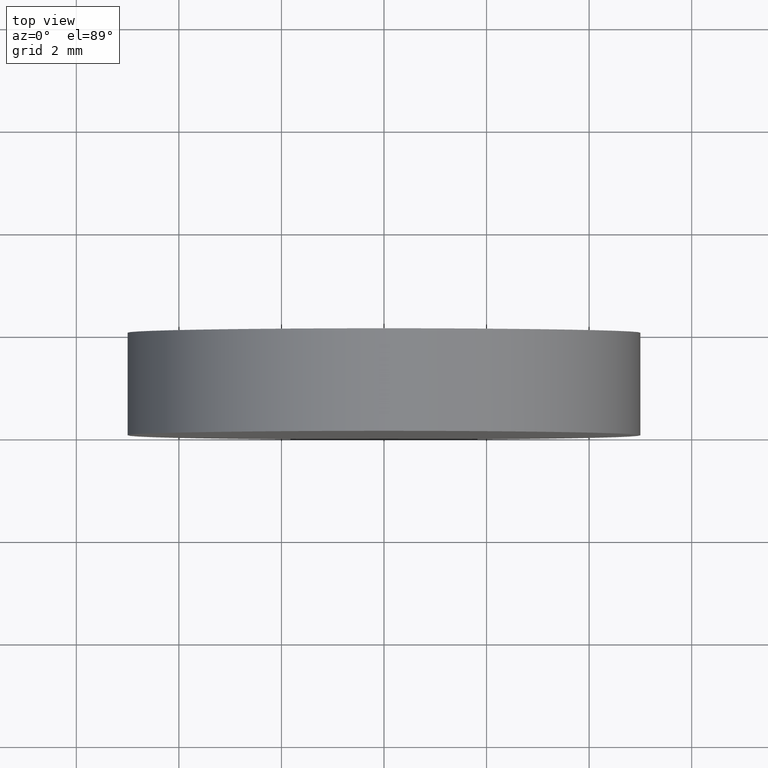
[diagram: clean part render]
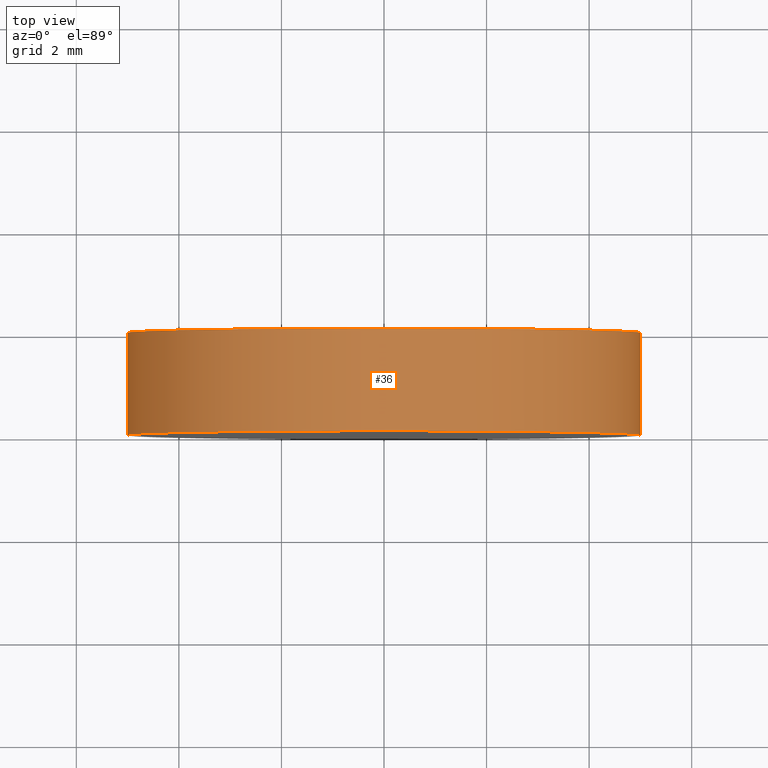
[diagram: same view with one face highlighted and labeled with its STEP entity id]
A machine part, top view. The second image highlights one B-rep face of the part: STEP entity #36.
In plain terms, the highlighted cylindrical surface (bore or boss wall) has radius 5 mm, axis along (0, 1, 0).
Its self-contained STEP definition (entity closure, byte-faithful):
#17=FACE_BOUND('',#22,.T.);
#18=FACE_OUTER_BOUND('',#21,.T.);
#21=EDGE_LOOP('',(#31));
#22=EDGE_LOOP('',(#32));
#25=CIRCLE('',#42,5.);
#26=CIRCLE('',#43,5.);
#27=VERTEX_POINT('',#60);
#28=VERTEX_POINT('',#62);
#29=EDGE_CURVE('',#27,#27,#25,.T.);
#30=EDGE_CURVE('',#28,#28,#26,.T.);
#31=ORIENTED_EDGE('',*,*,#29,.F.);
#32=ORIENTED_EDGE('',*,*,#30,.F.);
#35=CYLINDRICAL_SURFACE('',#41,5.);
#36=ADVANCED_FACE('',(#18,#17),#35,.T.);
#41=AXIS2_PLACEMENT_3D('',#59,#48,#49);
#42=AXIS2_PLACEMENT_3D('',#61,#50,#51);
#43=AXIS2_PLACEMENT_3D('',#63,#52,#53);
#48=DIRECTION('center_axis',(0.,1.,0.));
#49=DIRECTION('ref_axis',(1.,0.,0.));
#50=DIRECTION('center_axis',(0.,1.,0.));
#51=DIRECTION('ref_axis',(1.,0.,0.));
#52=DIRECTION('center_axis',(0.,-1.,0.));
#53=DIRECTION('ref_axis',(1.,0.,0.));
#59=CARTESIAN_POINT('Origin',(0.,0.,0.));
#60=CARTESIAN_POINT('',(-5.,2.,6.12323399573677E-16));
#61=CARTESIAN_POINT('Origin',(0.,2.,0.));
#62=CARTESIAN_POINT('',(-5.,0.,6.12323399573677E-16));
#63=CARTESIAN_POINT('Origin',(0.,0.,0.));